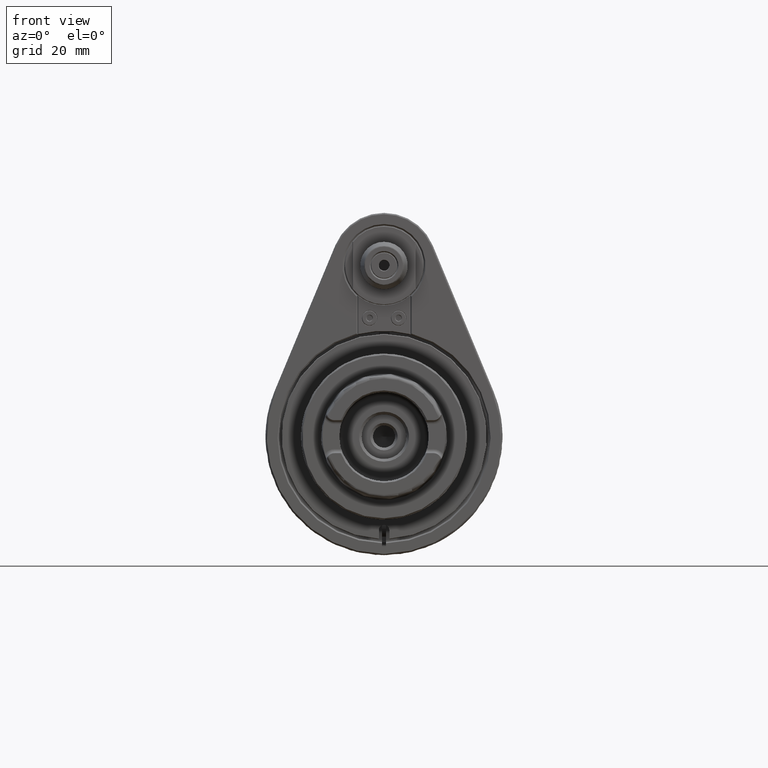
[diagram: clean part render]
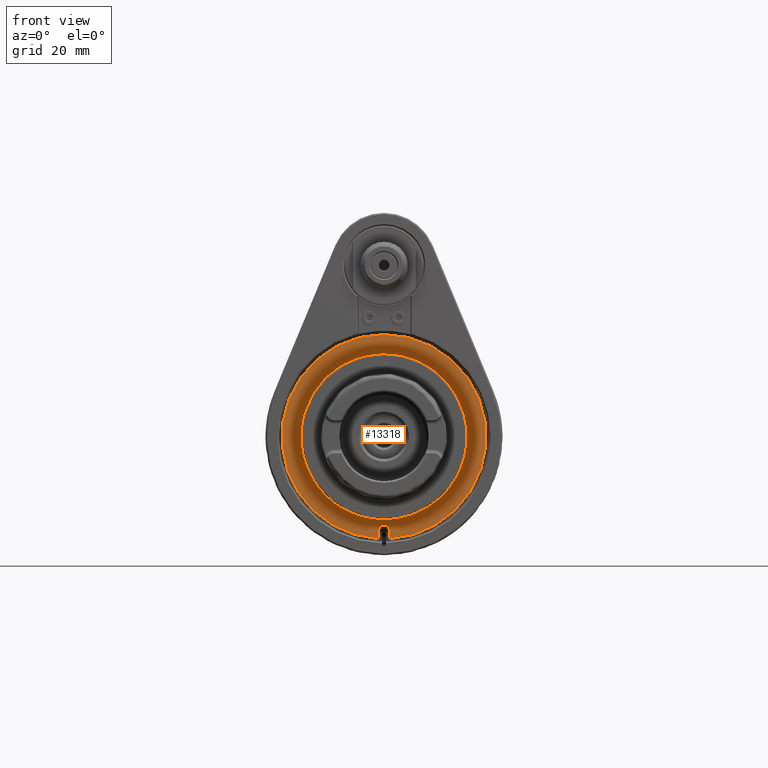
[diagram: same view with one face highlighted and labeled with its STEP entity id]
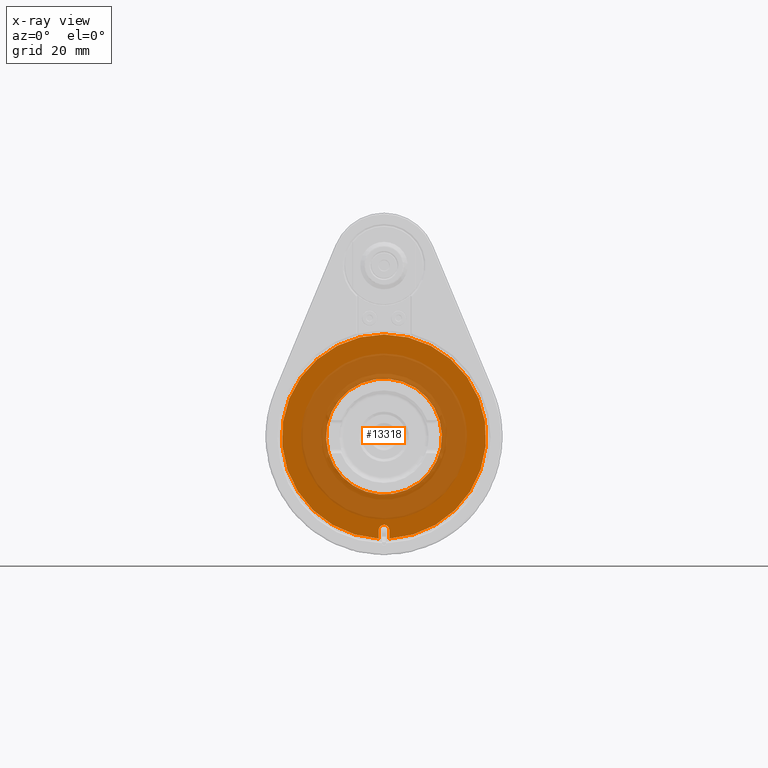
[diagram: x-ray of the same camera — body ghosted, the highlighted face saturated]
A machine part, front view. The second image highlights one B-rep face of the part: STEP entity #13318.
The next image is the same camera in x-ray: the body ghosted, the highlighted face saturated — about 51% of this face is hidden behind the body in this view.
In plain terms, the highlighted planar face has unit normal (0, 1, 0).
Its self-contained STEP definition (entity closure, byte-faithful):
#1296=LINE('',#27099,#2271);
#1297=LINE('',#27105,#2272);
#2271=VECTOR('',#18021,10.);
#2272=VECTOR('',#18028,10.);
#2728=FACE_BOUND('',#4166,.T.);
#3333=FACE_OUTER_BOUND('',#4165,.T.);
#4165=EDGE_LOOP('',(#11375,#11376,#11377,#11378));
#4166=EDGE_LOOP('',(#11379));
#4913=CIRCLE('',#14641,38.79997282822);
#4914=CIRCLE('',#14642,2.);
#4915=CIRCLE('',#14643,22.);
#6060=VERTEX_POINT('',#27075);
#6068=VERTEX_POINT('',#27097);
#6069=VERTEX_POINT('',#27101);
#6070=VERTEX_POINT('',#27103);
#6071=VERTEX_POINT('',#27106);
#7883=EDGE_CURVE('',#6060,#6068,#1296,.T.);
#7884=EDGE_CURVE('',#6060,#6069,#4913,.T.);
#7885=EDGE_CURVE('',#6068,#6070,#4914,.T.);
#7886=EDGE_CURVE('',#6070,#6069,#1297,.T.);
#7887=EDGE_CURVE('',#6071,#6071,#4915,.T.);
#11375=ORIENTED_EDGE('',*,*,#7884,.F.);
#11376=ORIENTED_EDGE('',*,*,#7883,.T.);
#11377=ORIENTED_EDGE('',*,*,#7885,.T.);
#11378=ORIENTED_EDGE('',*,*,#7886,.T.);
#11379=ORIENTED_EDGE('',*,*,#7887,.T.);
#12675=PLANE('',#14640);
#13318=ADVANCED_FACE('',(#3333,#2728),#12675,.F.);
#14640=AXIS2_PLACEMENT_3D('',#27100,#18022,#18023);
#14641=AXIS2_PLACEMENT_3D('',#27102,#18024,#18025);
#14642=AXIS2_PLACEMENT_3D('',#27104,#18026,#18027);
#14643=AXIS2_PLACEMENT_3D('',#27107,#18029,#18030);
#18021=DIRECTION('',(0.,0.,1.));
#18022=DIRECTION('center_axis',(0.,1.,0.));
#18023=DIRECTION('ref_axis',(0.866025403784429,0.,0.500000000000017));
#18024=DIRECTION('center_axis',(0.,1.,0.));
#18025=DIRECTION('ref_axis',(-0.0515463917525813,0.,-0.998670601097924));
#18026=DIRECTION('center_axis',(0.,1.,0.));
#18027=DIRECTION('ref_axis',(-1.,0.,1.06581410364E-14));
#18028=DIRECTION('',(0.,0.,-1.));
#18029=DIRECTION('center_axis',(0.,1.,0.));
#18030=DIRECTION('ref_axis',(0.866025403784429,0.,0.500000000000017));
#27075=CARTESIAN_POINT('',(-2.00158316796226,-8.00136008698347,-38.7429084639518));
#27097=CARTESIAN_POINT('',(-2.,-8.,-35.5));
#27099=CARTESIAN_POINT('',(-2.,-8.,-19.5));
#27100=CARTESIAN_POINT('Origin',(-1.091779395535E-14,-8.,0.));
#27101=CARTESIAN_POINT('',(2.00158905841664,-8.00135420020843,-38.7429070627101));
#27102=CARTESIAN_POINT('Origin',(1.673560882146E-13,-8.,5.808468001828E-13));
#27103=CARTESIAN_POINT('',(2.,-8.,-35.5));
#27104=CARTESIAN_POINT('Origin',(-1.091779395535E-14,-8.,-35.5));
#27105=CARTESIAN_POINT('',(2.,-8.,-17.75));
#27106=CARTESIAN_POINT('',(-19.0525588832575,-8.,-11.0000000000004));
#27107=CARTESIAN_POINT('Origin',(-1.091779395535E-14,-8.,0.));